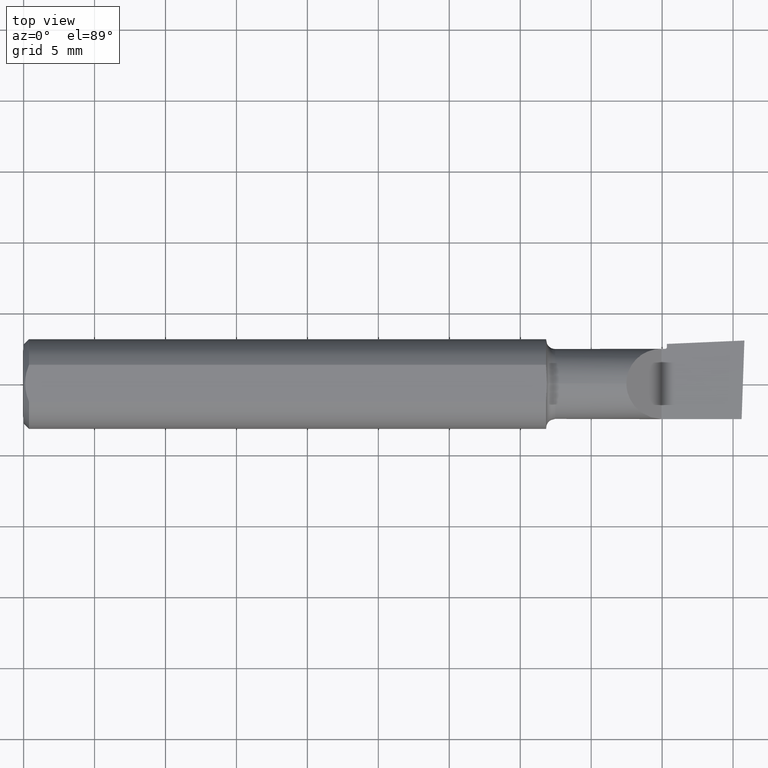
[diagram: clean part render]
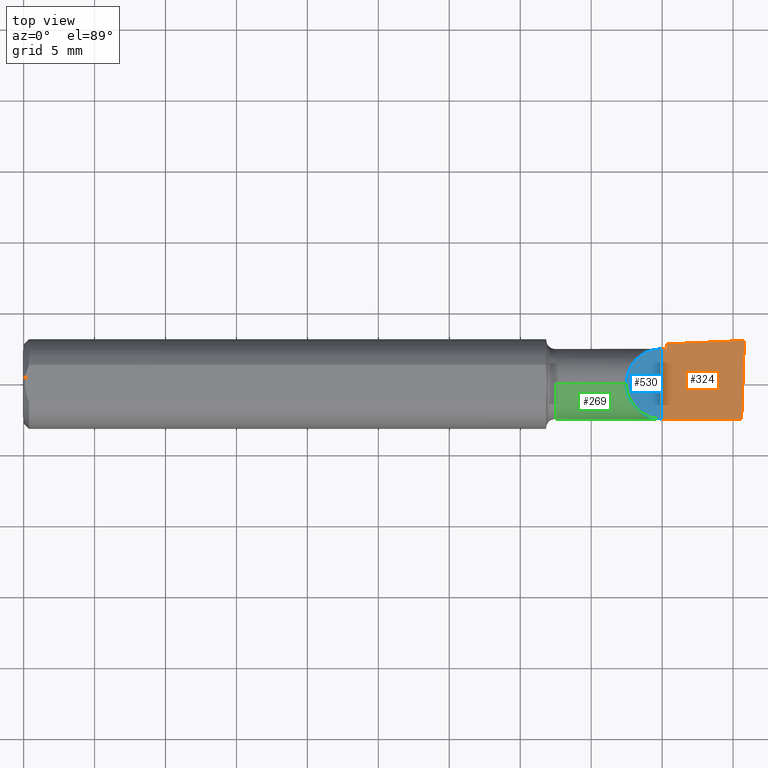
[diagram: same view with three faces highlighted in distinct colors, each labeled with its STEP entity id]
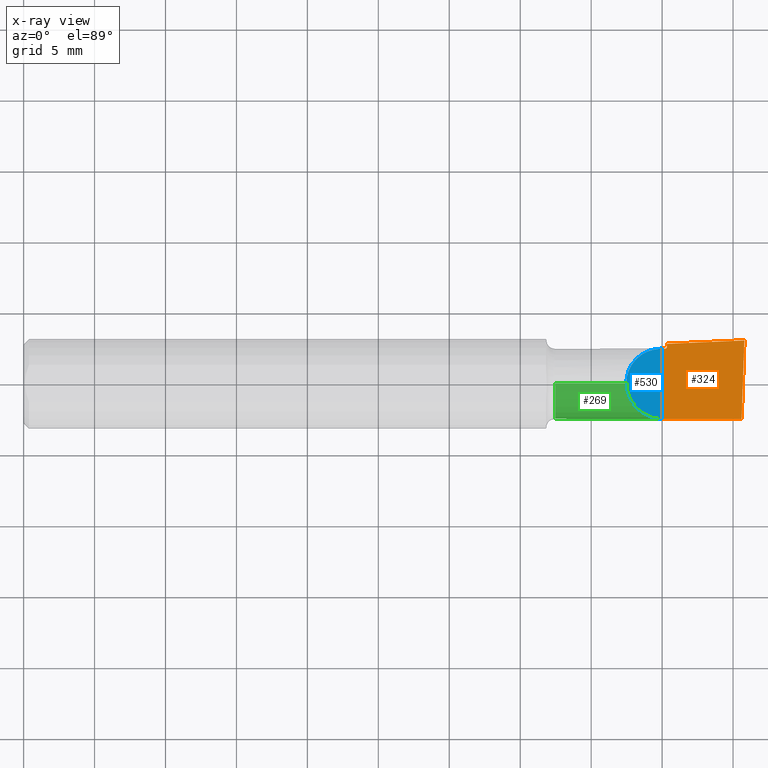
[diagram: x-ray of the same camera — body ghosted, the three highlighted faces saturated]
A machine part, top view with three faces highlighted in distinct colors.
The next image is the same camera in x-ray (body ghosted, the three faces saturated) — at least one of them is partly hidden behind the body in this view.
Their STEP definitions:

[orange] entity #324 — the highlighted planar face has unit normal (0, 0, -1).
#5 = CARTESIAN_POINT ( 'NONE',  ( 3.021633225635175904E-31, 0.09750000000000000333, -7.773844898935373068E-16 ) ) ;
#6 = EDGE_CURVE ( 'NONE', #508, #244, #384, .T. ) ;
#13 = CARTESIAN_POINT ( 'NONE',  ( 1.865109836723367387, 0.1146629148157311123, -5.243076038523058513E-17 ) ) ;
#24 = LINE ( 'NONE', #212, #438 ) ;
#30 = LINE ( 'NONE', #261, #334 ) ;
#32 = EDGE_CURVE ( 'NONE', #83, #141, #539, .T. ) ;
#50 = AXIS2_PLACEMENT_3D ( 'NONE', #343, #240, #99 ) ;
#53 = EDGE_CURVE ( 'NONE', #574, #428, #151, .T. ) ;
#57 = CARTESIAN_POINT ( 'NONE',  ( 1.793453857359137649, 0.1115079347444489777, -8.028288386817234316E-17 ) ) ;
#77 = CARTESIAN_POINT ( 'NONE',  ( 1.770000000000000240, -0.09749999999999971190, -8.939921633775677106E-17 ) ) ;
#83 = VERTEX_POINT ( 'NONE', #125 ) ;
#99 = DIRECTION ( 'NONE',  ( -1.000000000000000000, 0.000000000000000000, -3.886922449467621453E-16 ) ) ;
#108 = CARTESIAN_POINT ( 'NONE',  ( 1.780000000000000027, 0.09750000000000000333, -7.773844898935373068E-16 ) ) ;
#115 = CARTESIAN_POINT ( 'NONE',  ( 1.785000000000000142, 0.1025000000000000633, -8.356883266355525457E-17 ) ) ;
#125 = CARTESIAN_POINT ( 'NONE',  ( 1.992294917929013254, -0.09750000000000000333, -7.773844898935373068E-16 ) ) ;
#140 = CARTESIAN_POINT ( 'NONE',  ( 1.785000000000000142, 0.1111356925928525391, -8.323599355695802456E-17 ) ) ;
#141 = VERTEX_POINT ( 'NONE', #77 ) ;
#149 = CARTESIAN_POINT ( 'NONE',  ( 1.789226928511898240, 0.1113218174764034063, -8.192585833103609722E-17 ) ) ;
#151 = LINE ( 'NONE', #5, #333 ) ;
#155 = EDGE_CURVE ( 'NONE', #574, #141, #271, .T. ) ;
#162 = VERTEX_POINT ( 'NONE', #115 ) ;
#167 = ORIENTED_EDGE ( 'NONE', *, *, #458, .T. ) ;
#170 = CARTESIAN_POINT ( 'NONE',  ( 1.770000000000000240, 1.220000000000000195, -8.939921633775677106E-17 ) ) ;
#172 = DIRECTION ( 'NONE',  ( -0.000000000000000000, -1.000000000000000000, -0.000000000000000000 ) ) ;
#210 = EDGE_CURVE ( 'NONE', #83, #508, #24, .T. ) ;
#212 = CARTESIAN_POINT ( 'NONE',  ( 2.038600769162305593, 1.218641908244754601, 1.500381962236843253E-17 ) ) ;
#224 = CIRCLE ( 'NONE', #50, 0.005000000000000083371 ) ;
#229 = ORIENTED_EDGE ( 'NONE', *, *, #6, .T. ) ;
#240 = DIRECTION ( 'NONE',  ( 3.886922449467686041E-16, 0.000000000000000000, -1.000000000000000000 ) ) ;
#244 = VERTEX_POINT ( 'NONE', #140 ) ;
#255 = VECTOR ( 'NONE', #580, 39.37007874015748143 ) ;
#261 = CARTESIAN_POINT ( 'NONE',  ( 1.785000000000000142, 1.220000000000000195, -8.356883266355525457E-17 ) ) ;
#271 = LINE ( 'NONE', #170, #429 ) ;
#287 = CARTESIAN_POINT ( 'NONE',  ( 2.000000000000000444, 1.220000000000000195, 0.000000000000000000 ) ) ;
#294 = CARTESIAN_POINT ( 'NONE',  ( 3.021633225635175904E-31, -0.09750000000000000333, -7.773844898935373068E-16 ) ) ;
#324 = ADVANCED_FACE ( 'NONE', ( #327 ), #615, .F. ) ;
#327 = FACE_OUTER_BOUND ( 'NONE', #463, .T. ) ;
#328 = ORIENTED_EDGE ( 'NONE', *, *, #210, .T. ) ;
#333 = VECTOR ( 'NONE', #445, 39.37007874015748143 ) ;
#334 = VECTOR ( 'NONE', #355, 39.37007874015748143 ) ;
#342 = CARTESIAN_POINT ( 'NONE',  ( 1.999968171209103529, 0.1205953366697382900, 2.106509079813542075E-19 ) ) ;
#343 = CARTESIAN_POINT ( 'NONE',  ( 1.780000000000000027, 0.1024999999999999939, 0.000000000000000000 ) ) ;
#355 = DIRECTION ( 'NONE',  ( 0.000000000000000000, 1.000000000000000000, 0.000000000000000000 ) ) ;
#380 = DIRECTION ( 'NONE',  ( -1.000000000000000000, 0.000000000000000000, -3.886922449467686534E-16 ) ) ;
#384 = B_SPLINE_CURVE_WITH_KNOTS ( 'NONE', 3,
 ( #486, #594, #13, #487, #57, #149, #396 ),
 .UNSPECIFIED., .F., .F.,
 ( 4, 3, 4 ),
 ( 0.01380060958721771557, 0.01894368115178152873, 0.01926608520747328038 ),
 .UNSPECIFIED. ) ;
#396 = CARTESIAN_POINT ( 'NONE',  ( 1.785000000000000142, 0.1111356925928525391, -8.323599355695802456E-17 ) ) ;
#406 = DIRECTION ( 'NONE',  ( 0.03516126778371352762, 0.9993816514464540779, 1.346392927460651261E-17 ) ) ;
#412 = ORIENTED_EDGE ( 'NONE', *, *, #155, .T. ) ;
#428 = VERTEX_POINT ( 'NONE', #108 ) ;
#429 = VECTOR ( 'NONE', #172, 39.37007874015748143 ) ;
#438 = VECTOR ( 'NONE', #406, 39.37007874015748143 ) ;
#445 = DIRECTION ( 'NONE',  ( 1.000000000000000000, 0.000000000000000000, 0.000000000000000000 ) ) ;
#458 = EDGE_CURVE ( 'NONE', #162, #428, #224, .T. ) ;
#463 = EDGE_LOOP ( 'NONE', ( #328, #229, #527, #167, #554, #412, #504 ) ) ;
#486 = CARTESIAN_POINT ( 'NONE',  ( 1.999968171209103529, 0.1205953366697382900, 2.106509079813542075E-19 ) ) ;
#487 = CARTESIAN_POINT ( 'NONE',  ( 1.797680786536825392, 0.1116940445071882421, -7.863990927686592372E-17 ) ) ;
#504 = ORIENTED_EDGE ( 'NONE', *, *, #32, .F. ) ;
#508 = VERTEX_POINT ( 'NONE', #342 ) ;
#527 = ORIENTED_EDGE ( 'NONE', *, *, #605, .F. ) ;
#539 = LINE ( 'NONE', #294, #255 ) ;
#548 = AXIS2_PLACEMENT_3D ( 'NONE', #287, #564, #380 ) ;
#554 = ORIENTED_EDGE ( 'NONE', *, *, #53, .F. ) ;
#564 = DIRECTION ( 'NONE',  ( 3.886922449467686534E-16, 0.000000000000000000, -1.000000000000000000 ) ) ;
#574 = VERTEX_POINT ( 'NONE', #604 ) ;
#580 = DIRECTION ( 'NONE',  ( -1.000000000000000000, -0.000000000000000000, -0.000000000000000000 ) ) ;
#594 = CARTESIAN_POINT ( 'NONE',  ( 1.932538970586610283, 0.1176298850380779748, -2.622157896911051674E-17 ) ) ;
#604 = CARTESIAN_POINT ( 'NONE',  ( 1.770000000000000240, 0.09750000000000025313, -8.939921633775677106E-17 ) ) ;
#605 = EDGE_CURVE ( 'NONE', #162, #244, #30, .T. ) ;
#615 = PLANE ( 'NONE',  #548 ) ;

[blue] entity #530 — the highlighted planar face has unit normal (-0.7071, 0, -0.7071).
#12 = FACE_OUTER_BOUND ( 'NONE', #483, .T. ) ;
#18 = CARTESIAN_POINT ( 'NONE',  ( 1.672500000000000320, -0.05711417766862324219, 0.09750000000000003109 ) ) ;
#52 = ORIENTED_EDGE ( 'NONE', *, *, #155, .F. ) ;
#76 = CARTESIAN_POINT ( 'NONE',  ( 1.672500000000000764, 0.000000000000000000, 0.09750000000000000333 ) ) ;
#77 = CARTESIAN_POINT ( 'NONE',  ( 1.770000000000000240, -0.09749999999999971190, -8.939921633775677106E-17 ) ) ;
#141 = VERTEX_POINT ( 'NONE', #77 ) ;
#148 = DIRECTION ( 'NONE',  ( -0.7071067811865461294, 0.000000000000000000, 0.7071067811865487940 ) ) ;
#155 = EDGE_CURVE ( 'NONE', #574, #141, #271, .T. ) ;
#170 = CARTESIAN_POINT ( 'NONE',  ( 1.770000000000000240, 1.220000000000000195, -8.939921633775677106E-17 ) ) ;
#172 = DIRECTION ( 'NONE',  ( -0.000000000000000000, -1.000000000000000000, -0.000000000000000000 ) ) ;
#177 = CARTESIAN_POINT ( 'NONE',  ( 1.672500000000000764, 0.000000000000000000, 0.09750000000000000333 ) ) ;
#242 = EDGE_CURVE ( 'NONE', #297, #574, #248, .T. ) ;
#248 =( BOUNDED_CURVE ( )  B_SPLINE_CURVE ( 3, ( #177, #285, #415, #420 ),
 .UNSPECIFIED., .F., .T. ) 
 B_SPLINE_CURVE_WITH_KNOTS ( ( 4, 4 ),
 ( 0.000000000000000000, 1.570796326794897002 ),
 .UNSPECIFIED. ) 
 CURVE ( )  GEOMETRIC_REPRESENTATION_ITEM ( )  RATIONAL_B_SPLINE_CURVE ( ( 1.000000000000000000, 0.8047378541243649375, 0.8047378541243649375, 1.000000000000000000 ) ) 
 REPRESENTATION_ITEM ( '' )  );
#250 =( BOUNDED_CURVE ( )  B_SPLINE_CURVE ( 3, ( #446, #502, #18, #76 ),
 .UNSPECIFIED., .F., .T. ) 
 B_SPLINE_CURVE_WITH_KNOTS ( ( 4, 4 ),
 ( 4.712388980384689674, 6.283185307179586232 ),
 .UNSPECIFIED. ) 
 CURVE ( )  GEOMETRIC_REPRESENTATION_ITEM ( )  RATIONAL_B_SPLINE_CURVE ( ( 1.000000000000000000, 0.8047378541243649375, 0.8047378541243649375, 1.000000000000000000 ) ) 
 REPRESENTATION_ITEM ( '' )  );
#271 = LINE ( 'NONE', #170, #429 ) ;
#283 = ORIENTED_EDGE ( 'NONE', *, *, #242, .F. ) ;
#285 = CARTESIAN_POINT ( 'NONE',  ( 1.672500000000000320, 0.05711417766862324219, 0.09750000000000003109 ) ) ;
#297 = VERTEX_POINT ( 'NONE', #510 ) ;
#415 = CARTESIAN_POINT ( 'NONE',  ( 1.712885822331376762, 0.09750000000000003109, 0.05711417766862324219 ) ) ;
#420 = CARTESIAN_POINT ( 'NONE',  ( 1.770000000000000240, 0.09750000000000025313, -8.939921633775677106E-17 ) ) ;
#429 = VECTOR ( 'NONE', #172, 39.37007874015748143 ) ;
#446 = CARTESIAN_POINT ( 'NONE',  ( 1.770000000000000240, -0.09749999999999971190, -8.939921633775677106E-17 ) ) ;
#482 = DIRECTION ( 'NONE',  ( -0.7071067811865489050, 0.000000000000000000, -0.7071067811865462405 ) ) ;
#483 = EDGE_LOOP ( 'NONE', ( #620, #52, #283 ) ) ;
#502 = CARTESIAN_POINT ( 'NONE',  ( 1.712885822331376762, -0.09750000000000003109, 0.05711417766862322831 ) ) ;
#509 = AXIS2_PLACEMENT_3D ( 'NONE', #526, #482, #148 ) ;
#510 = CARTESIAN_POINT ( 'NONE',  ( 1.672500000000000764, 0.000000000000000000, 0.09750000000000000333 ) ) ;
#526 = CARTESIAN_POINT ( 'NONE',  ( 1.770000000000000240, 1.220000000000000195, -8.939921633775677106E-17 ) ) ;
#530 = ADVANCED_FACE ( 'NONE', ( #12 ), #583, .F. ) ;
#574 = VERTEX_POINT ( 'NONE', #604 ) ;
#583 = PLANE ( 'NONE',  #509 ) ;
#604 = CARTESIAN_POINT ( 'NONE',  ( 1.770000000000000240, 0.09750000000000025313, -8.939921633775677106E-17 ) ) ;
#606 = EDGE_CURVE ( 'NONE', #141, #297, #250, .T. ) ;
#620 = ORIENTED_EDGE ( 'NONE', *, *, #606, .F. ) ;

[green] entity #269 — the highlighted cylindrical surface (edge-blend (fillet) strip) has radius 2.4765 mm, axis along (-1, -0, -0).
#1 = CARTESIAN_POINT ( 'NONE',  ( 1.981736911837515880, -0.05711417766862269402, -0.09750000000000021150 ) ) ;
#8 = LINE ( 'NONE', #392, #203 ) ;
#14 = EDGE_CURVE ( 'NONE', #297, #116, #494, .T. ) ;
#18 = CARTESIAN_POINT ( 'NONE',  ( 1.672500000000000320, -0.05711417766862324219, 0.09750000000000003109 ) ) ;
#20 = EDGE_CURVE ( 'NONE', #92, #306, #8, .T. ) ;
#32 = EDGE_CURVE ( 'NONE', #83, #141, #539, .T. ) ;
#65 = CARTESIAN_POINT ( 'NONE',  ( 1.474999999999999867, 0.000000000000000000, 0.09750000000000000333 ) ) ;
#76 = CARTESIAN_POINT ( 'NONE',  ( 1.672500000000000764, 0.000000000000000000, 0.09750000000000000333 ) ) ;
#77 = CARTESIAN_POINT ( 'NONE',  ( 1.770000000000000240, -0.09749999999999971190, -8.939921633775677106E-17 ) ) ;
#83 = VERTEX_POINT ( 'NONE', #125 ) ;
#92 = VERTEX_POINT ( 'NONE', #318 ) ;
#95 = CARTESIAN_POINT ( 'NONE',  ( 1.992294917929013254, -0.09750000000000000333, -7.773844898935373068E-16 ) ) ;
#113 = DIRECTION ( 'NONE',  ( 1.000000000000000000, 1.790984261580658209E-17, -1.886503422198224724E-16 ) ) ;
#116 = VERTEX_POINT ( 'NONE', #65 ) ;
#121 = ORIENTED_EDGE ( 'NONE', *, *, #411, .F. ) ;
#123 = ORIENTED_EDGE ( 'NONE', *, *, #20, .T. ) ;
#125 = CARTESIAN_POINT ( 'NONE',  ( 1.992294917929013254, -0.09750000000000000333, -7.773844898935373068E-16 ) ) ;
#132 = DIRECTION ( 'NONE',  ( -1.000000000000000000, -0.000000000000000000, -0.000000000000000000 ) ) ;
#136 = AXIS2_PLACEMENT_3D ( 'NONE', #538, #579, #145 ) ;
#141 = VERTEX_POINT ( 'NONE', #77 ) ;
#145 = DIRECTION ( 'NONE',  ( 0.000000000000000000, 0.000000000000000000, 1.000000000000000000 ) ) ;
#150 = LINE ( 'NONE', #247, #163 ) ;
#163 = VECTOR ( 'NONE', #293, 39.37007874015748143 ) ;
#175 = CARTESIAN_POINT ( 'NONE',  ( 0.000000000000000000, 0.000000000000000000, 0.000000000000000000 ) ) ;
#203 = VECTOR ( 'NONE', #113, 39.37007874015748143 ) ;
#231 = CYLINDRICAL_SURFACE ( 'NONE', #528, 0.09750000000000000333 ) ;
#233 = EDGE_LOOP ( 'NONE', ( #525, #123, #475, #272, #432, #520, #121 ) ) ;
#235 = CARTESIAN_POINT ( 'NONE',  ( 1.985277839943183853, -0.09749999999999961475, -0.05711417766862378342 ) ) ;
#238 = CARTESIAN_POINT ( 'NONE',  ( 1.983746361272920922, 3.672515324128580088E-16, -0.09749999999999998945 ) ) ;
#239 = CARTESIAN_POINT ( 'NONE',  ( 0.000000000000000000, 0.000000000000000000, 0.09750000000000000333 ) ) ;
#241 = DIRECTION ( 'NONE',  ( -1.000000000000000000, -0.000000000000000000, -0.000000000000000000 ) ) ;
#247 = CARTESIAN_POINT ( 'NONE',  ( 0.000000000000000000, 1.194030629168669352E-17, -0.09750000000000000333 ) ) ;
#250 =( BOUNDED_CURVE ( )  B_SPLINE_CURVE ( 3, ( #446, #502, #18, #76 ),
 .UNSPECIFIED., .F., .T. ) 
 B_SPLINE_CURVE_WITH_KNOTS ( ( 4, 4 ),
 ( 4.712388980384689674, 6.283185307179586232 ),
 .UNSPECIFIED. ) 
 CURVE ( )  GEOMETRIC_REPRESENTATION_ITEM ( )  RATIONAL_B_SPLINE_CURVE ( ( 1.000000000000000000, 0.8047378541243649375, 0.8047378541243649375, 1.000000000000000000 ) ) 
 REPRESENTATION_ITEM ( '' )  );
#251 = VERTEX_POINT ( 'NONE', #386 ) ;
#255 = VECTOR ( 'NONE', #580, 39.37007874015748143 ) ;
#269 = ADVANCED_FACE ( 'NONE', ( #377 ), #231, .T. ) ;
#272 = ORIENTED_EDGE ( 'NONE', *, *, #32, .T. ) ;
#293 = DIRECTION ( 'NONE',  ( -1.000000000000000000, -0.000000000000000000, -0.000000000000000000 ) ) ;
#294 = CARTESIAN_POINT ( 'NONE',  ( 3.021633225635175904E-31, -0.09750000000000000333, -7.773844898935373068E-16 ) ) ;
#297 = VERTEX_POINT ( 'NONE', #510 ) ;
#306 = VERTEX_POINT ( 'NONE', #423 ) ;
#318 = CARTESIAN_POINT ( 'NONE',  ( 1.780000000000000027, 3.722989503933402437E-16, -0.09749999999999996170 ) ) ;
#341 = EDGE_CURVE ( 'NONE', #83, #306, #532, .T. ) ;
#377 = FACE_OUTER_BOUND ( 'NONE', #233, .T. ) ;
#386 = CARTESIAN_POINT ( 'NONE',  ( 1.474999999999999867, 1.347111479062088626E-17, -0.09750000000000000333 ) ) ;
#392 = CARTESIAN_POINT ( 'NONE',  ( 1.700000000000000400, 3.708661629840757186E-16, -0.09749999999999994782 ) ) ;
#408 = CIRCLE ( 'NONE', #136, 0.09750000000000000333 ) ;
#411 = EDGE_CURVE ( 'NONE', #251, #116, #408, .T. ) ;
#423 = CARTESIAN_POINT ( 'NONE',  ( 1.983746361272920922, 3.672515324128580088E-16, -0.09749999999999998945 ) ) ;
#432 = ORIENTED_EDGE ( 'NONE', *, *, #606, .T. ) ;
#446 = CARTESIAN_POINT ( 'NONE',  ( 1.770000000000000240, -0.09749999999999971190, -8.939921633775677106E-17 ) ) ;
#475 = ORIENTED_EDGE ( 'NONE', *, *, #341, .F. ) ;
#494 = LINE ( 'NONE', #239, #537 ) ;
#502 = CARTESIAN_POINT ( 'NONE',  ( 1.712885822331376762, -0.09750000000000003109, 0.05711417766862322831 ) ) ;
#510 = CARTESIAN_POINT ( 'NONE',  ( 1.672500000000000764, 0.000000000000000000, 0.09750000000000000333 ) ) ;
#520 = ORIENTED_EDGE ( 'NONE', *, *, #14, .T. ) ;
#522 = EDGE_CURVE ( 'NONE', #92, #251, #150, .T. ) ;
#525 = ORIENTED_EDGE ( 'NONE', *, *, #522, .F. ) ;
#528 = AXIS2_PLACEMENT_3D ( 'NONE', #175, #132, #621 ) ;
#532 =( BOUNDED_CURVE ( )  B_SPLINE_CURVE ( 3, ( #95, #235, #1, #238 ),
 .UNSPECIFIED., .F., .T. ) 
 B_SPLINE_CURVE_WITH_KNOTS ( ( 4, 4 ),
 ( 4.991290653100386443, 6.562086979895279448 ),
 .UNSPECIFIED. ) 
 CURVE ( )  GEOMETRIC_REPRESENTATION_ITEM ( )  RATIONAL_B_SPLINE_CURVE ( ( 1.000000000000000000, 0.8047378541243658256, 0.8047378541243658256, 1.000000000000000000 ) ) 
 REPRESENTATION_ITEM ( '' )  );
#537 = VECTOR ( 'NONE', #241, 39.37007874015748143 ) ;
#538 = CARTESIAN_POINT ( 'NONE',  ( 1.474999999999999867, 0.000000000000000000, 0.000000000000000000 ) ) ;
#539 = LINE ( 'NONE', #294, #255 ) ;
#579 = DIRECTION ( 'NONE',  ( -1.000000000000000000, -0.000000000000000000, -0.000000000000000000 ) ) ;
#580 = DIRECTION ( 'NONE',  ( -1.000000000000000000, -0.000000000000000000, -0.000000000000000000 ) ) ;
#606 = EDGE_CURVE ( 'NONE', #141, #297, #250, .T. ) ;
#621 = DIRECTION ( 'NONE',  ( 0.000000000000000000, 0.000000000000000000, 1.000000000000000000 ) ) ;